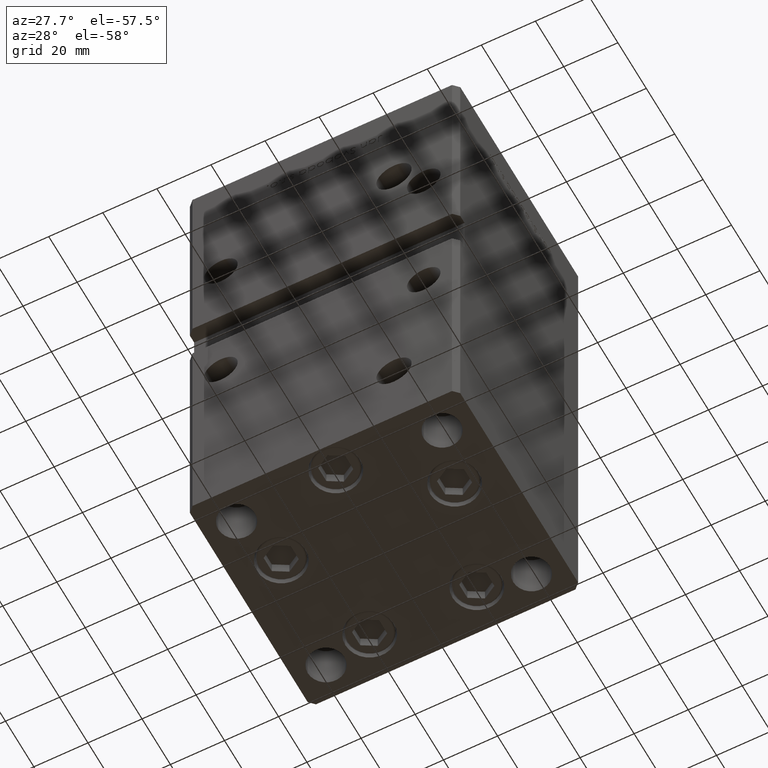
[diagram: clean part render]
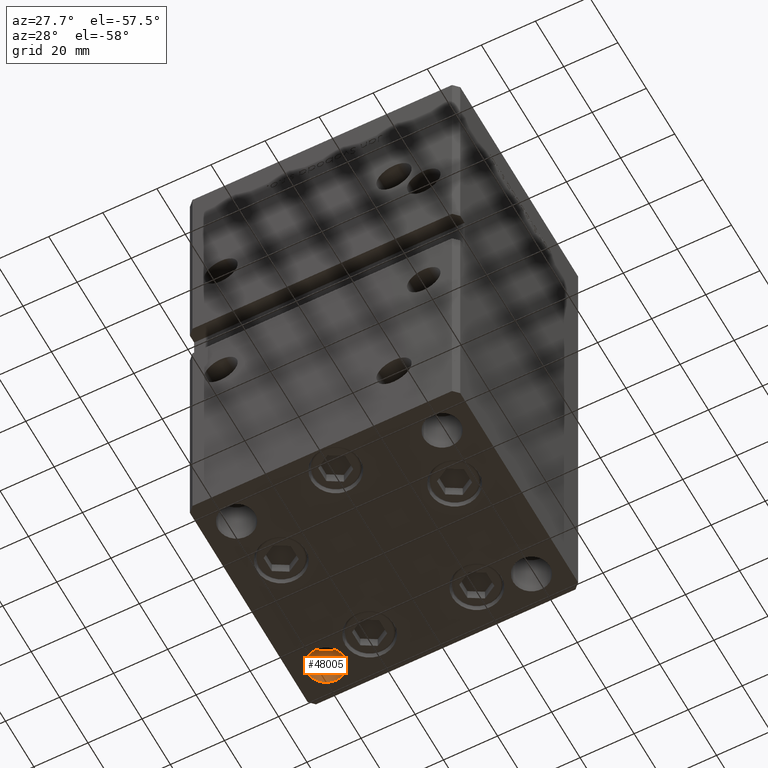
[diagram: same view with one face highlighted and labeled with its STEP entity id]
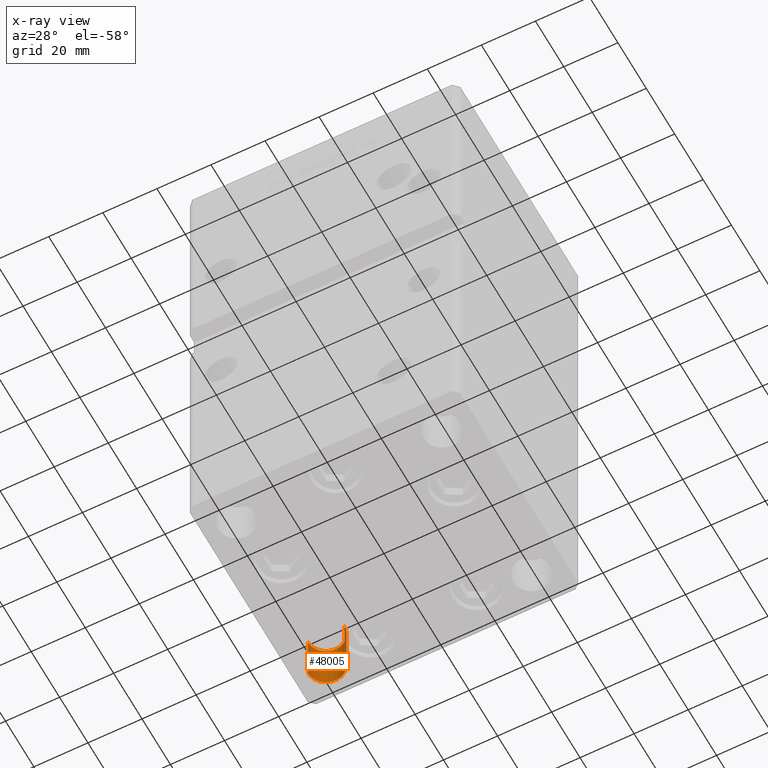
[diagram: x-ray of the same camera — body ghosted, the highlighted face saturated]
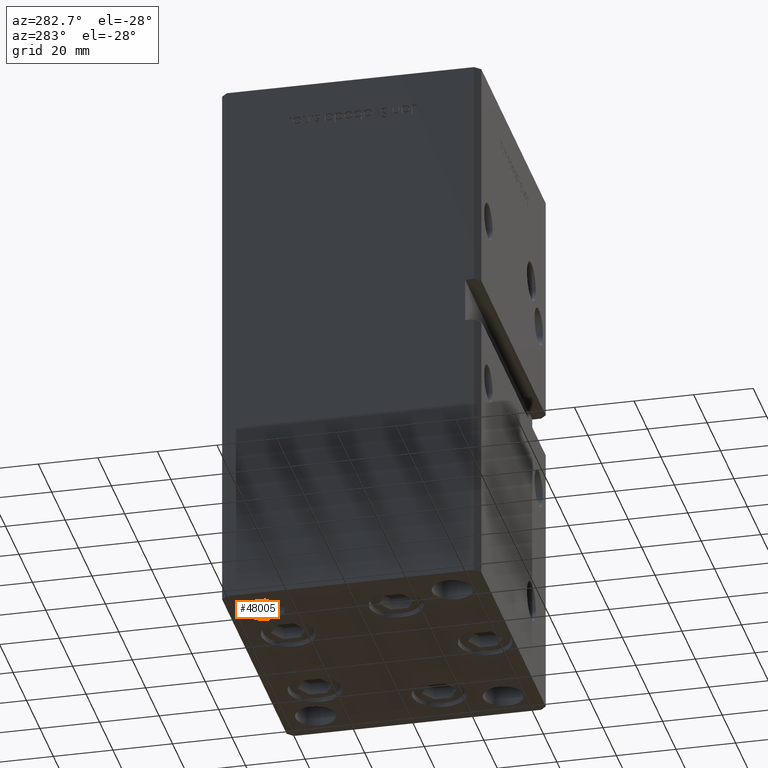
[diagram: same view with one face highlighted and labeled with its STEP entity id]
A machine part, auxiliary view. The second image highlights one B-rep face of the part: STEP entity #48005.
The next image is the same camera in x-ray: the body ghosted, the highlighted face saturated — about 0% of this face is hidden behind the body in this view.
A second angle (auxiliary view) of the same face is appended — the face is thin or edge-on in the first view.
In plain terms, the highlighted cylindrical surface (edge-blend (fillet) strip) has radius 6.75 mm, axis along (0, 0, -1).
Its self-contained STEP definition (entity closure, byte-faithful):
#67 = VERTEX_POINT ( 'NONE', #41884 ) ;
#1712 = DIRECTION ( 'NONE',  ( -0.000000000000000000, -0.000000000000000000, 1.000000000000000000 ) ) ;
#2168 = DIRECTION ( 'NONE',  ( 1.000000000000000000, 0.000000000000000000, 0.000000000000000000 ) ) ;
#2371 = EDGE_CURVE ( 'NONE', #35722, #3932, #25318, .T. ) ;
#3932 = VERTEX_POINT ( 'NONE', #9652 ) ;
#4008 = VERTEX_POINT ( 'NONE', #47803 ) ;
#6097 = EDGE_CURVE ( 'NONE', #4008, #67, #10821, .T. ) ;
#8102 = CIRCLE ( 'NONE', #38099, 6.749999999999999112 ) ;
#9652 = CARTESIAN_POINT ( 'NONE',  ( 31.25000000000000000, 31.49999999999999289, 0.000000000000000000 ) ) ;
#10821 = LINE ( 'NONE', #31748, #50857 ) ;
#13987 = CYLINDRICAL_SURFACE ( 'NONE', #21695, 6.749999999999999112 ) ;
#15368 = DIRECTION ( 'NONE',  ( -0.000000000000000000, -0.000000000000000000, 1.000000000000000000 ) ) ;
#17545 = CARTESIAN_POINT ( 'NONE',  ( 31.25000000000000000, 31.49999999999999289, -19.00000000000000000 ) ) ;
#18775 = CIRCLE ( 'NONE', #48820, 6.749999999999999112 ) ;
#20885 = CARTESIAN_POINT ( 'NONE',  ( 38.00000000000000000, 31.49999999999999289, -19.00000000000000000 ) ) ;
#21695 = AXIS2_PLACEMENT_3D ( 'NONE', #26593, #26049, #2168 ) ;
#25318 = LINE ( 'NONE', #17545, #29374 ) ;
#26049 = DIRECTION ( 'NONE',  ( -0.000000000000000000, -0.000000000000000000, 1.000000000000000000 ) ) ;
#26593 = CARTESIAN_POINT ( 'NONE',  ( 38.00000000000000000, 31.49999999999999289, -19.00000000000000000 ) ) ;
#28679 = DIRECTION ( 'NONE',  ( 1.000000000000000000, 0.000000000000000000, 0.000000000000000000 ) ) ;
#29374 = VECTOR ( 'NONE', #1712, 1000.000000000000000 ) ;
#30514 = ORIENTED_EDGE ( 'NONE', *, *, #6097, .T. ) ;
#31748 = CARTESIAN_POINT ( 'NONE',  ( 44.75000000000000000, 31.49999999999999289, -19.00000000000000000 ) ) ;
#31914 = CARTESIAN_POINT ( 'NONE',  ( 31.25000000000000000, 31.49999999999999289, -19.00000000000000000 ) ) ;
#33227 = DIRECTION ( 'NONE',  ( 0.000000000000000000, 0.000000000000000000, 1.000000000000000000 ) ) ;
#33291 = EDGE_CURVE ( 'NONE', #67, #3932, #18775, .T. ) ;
#34665 = FACE_OUTER_BOUND ( 'NONE', #47710, .T. ) ;
#35722 = VERTEX_POINT ( 'NONE', #31914 ) ;
#37838 = CARTESIAN_POINT ( 'NONE',  ( 38.00000000000000000, 31.49999999999999289, 0.000000000000000000 ) ) ;
#38099 = AXIS2_PLACEMENT_3D ( 'NONE', #20885, #33227, #28679 ) ;
#41884 = CARTESIAN_POINT ( 'NONE',  ( 44.75000000000000000, 31.49999999999999289, 0.000000000000000000 ) ) ;
#41886 = DIRECTION ( 'NONE',  ( 1.000000000000000000, 0.000000000000000000, 0.000000000000000000 ) ) ;
#47007 = DIRECTION ( 'NONE',  ( -0.000000000000000000, 0.000000000000000000, 1.000000000000000000 ) ) ;
#47675 = ORIENTED_EDGE ( 'NONE', *, *, #52186, .F. ) ;
#47710 = EDGE_LOOP ( 'NONE', ( #48921, #47675, #30514, #51935 ) ) ;
#47803 = CARTESIAN_POINT ( 'NONE',  ( 44.75000000000000000, 31.49999999999999289, -19.00000000000000000 ) ) ;
#48005 = ADVANCED_FACE ( 'NONE', ( #34665 ), #13987, .F. ) ;
#48820 = AXIS2_PLACEMENT_3D ( 'NONE', #37838, #47007, #41886 ) ;
#48921 = ORIENTED_EDGE ( 'NONE', *, *, #2371, .F. ) ;
#50857 = VECTOR ( 'NONE', #15368, 1000.000000000000000 ) ;
#51935 = ORIENTED_EDGE ( 'NONE', *, *, #33291, .T. ) ;
#52186 = EDGE_CURVE ( 'NONE', #4008, #35722, #8102, .T. ) ;